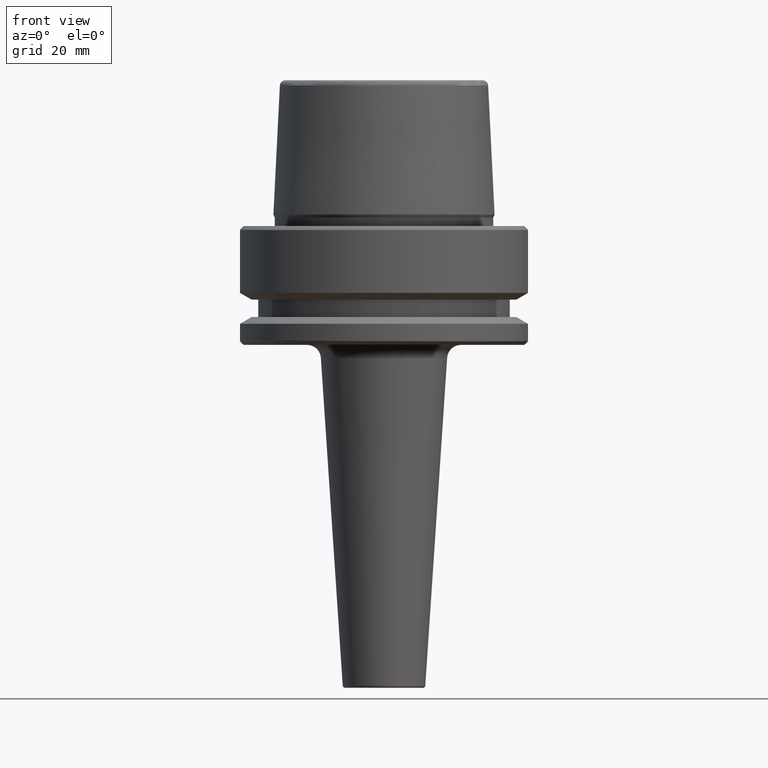
[diagram: clean part render]
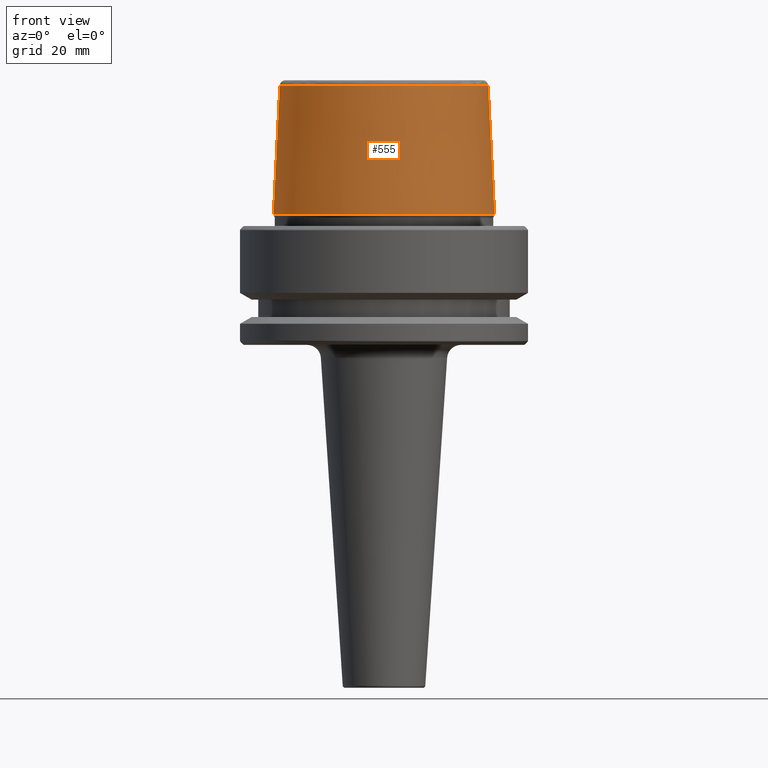
[diagram: same view with one face highlighted and labeled with its STEP entity id]
A machine part, front view. The second image highlights one B-rep face of the part: STEP entity #555.
In plain terms, the highlighted conical surface has half-angle 2.868 deg.
Its self-contained STEP definition (entity closure, byte-faithful):
#65 = ORIENTED_EDGE ( 'NONE', *, *, #1198, .T. ) ;
#71 = DIRECTION ( 'NONE',  ( 1.000000000000000000, 0.0000000000000000000, 0.0000000000000000000 ) ) ;
#129 = CARTESIAN_POINT ( 'NONE',  ( 24.19537568275369200, 0.0000000000000000000, 2.500000000000002200 ) ) ;
#133 = VECTOR ( 'NONE', #195, 1000.000000000000200 ) ;
#150 = VERTEX_POINT ( 'NONE', #927 ) ;
#170 = VERTEX_POINT ( 'NONE', #129 ) ;
#195 = DIRECTION ( 'NONE',  ( 0.05003611051310804400, 6.127656258166099700E-018, -0.9987474093306675200 ) ) ;
#209 = CIRCLE ( 'NONE', #944, 24.19537568275369200 ) ;
#222 = FACE_OUTER_BOUND ( 'NONE', #1004, .T. ) ;
#251 = EDGE_CURVE ( 'NONE', #150, #170, #911, .T. ) ;
#260 = CARTESIAN_POINT ( 'NONE',  ( -24.19537568275369200, 2.963078938405201500E-015, 2.500000000000002200 ) ) ;
#269 = CARTESIAN_POINT ( 'NONE',  ( -22.77957961851797100, 0.0000000000000000000, 30.76004333261571900 ) ) ;
#288 = EDGE_CURVE ( 'NONE', #635, #150, #1011, .T. ) ;
#292 = DIRECTION ( 'NONE',  ( 0.0000000000000000000, 0.0000000000000000000, -1.000000000000000000 ) ) ;
#296 = CARTESIAN_POINT ( 'NONE',  ( 24.19537568275369200, 2.963078938405201500E-015, 2.500000000000002200 ) ) ;
#315 = CARTESIAN_POINT ( 'NONE',  ( 0.0000000000000000000, 0.0000000000000000000, 2.500000000000002200 ) ) ;
#364 = VECTOR ( 'NONE', #1152, 1000.000000000000200 ) ;
#411 = DIRECTION ( 'NONE',  ( 1.000000000000000000, 0.0000000000000000000, 0.0000000000000000000 ) ) ;
#445 = ORIENTED_EDGE ( 'NONE', *, *, #251, .F. ) ;
#489 = DIRECTION ( 'NONE',  ( -1.000000000000000000, 0.0000000000000000000, 0.0000000000000000000 ) ) ;
#555 = ADVANCED_FACE ( 'NONE', ( #222 ), #1202, .T. ) ;
#570 = CARTESIAN_POINT ( 'NONE',  ( -24.19537568275369200, 0.0000000000000000000, 2.500000000000002200 ) ) ;
#612 = AXIS2_PLACEMENT_3D ( 'NONE', #875, #292, #489 ) ;
#618 = LINE ( 'NONE', #570, #364 ) ;
#619 = VERTEX_POINT ( 'NONE', #260 ) ;
#635 = VERTEX_POINT ( 'NONE', #269 ) ;
#638 = DIRECTION ( 'NONE',  ( -0.0000000000000000000, -0.0000000000000000000, 1.000000000000000000 ) ) ;
#770 = AXIS2_PLACEMENT_3D ( 'NONE', #1241, #638, #71 ) ;
#875 = CARTESIAN_POINT ( 'NONE',  ( 0.0000000000000000000, 0.0000000000000000000, 2.500000000000002200 ) ) ;
#911 = LINE ( 'NONE', #296, #133 ) ;
#927 = CARTESIAN_POINT ( 'NONE',  ( 22.77957961851797100, 2.876386432489616700E-015, 30.76004333261571900 ) ) ;
#944 = AXIS2_PLACEMENT_3D ( 'NONE', #315, #1009, #411 ) ;
#982 = EDGE_CURVE ( 'NONE', #635, #619, #618, .T. ) ;
#1004 = EDGE_LOOP ( 'NONE', ( #445, #1243, #1092, #65 ) ) ;
#1009 = DIRECTION ( 'NONE',  ( -0.0000000000000000000, -0.0000000000000000000, 1.000000000000000000 ) ) ;
#1011 = CIRCLE ( 'NONE', #770, 22.77957961851797100 ) ;
#1092 = ORIENTED_EDGE ( 'NONE', *, *, #982, .T. ) ;
#1152 = DIRECTION ( 'NONE',  ( -0.05003611051310804400, 0.0000000000000000000, -0.9987474093306675200 ) ) ;
#1198 = EDGE_CURVE ( 'NONE', #619, #170, #209, .T. ) ;
#1202 = CONICAL_SURFACE ( 'NONE', #612, 24.19537568275369200, 0.05005701257455997400 ) ;
#1241 = CARTESIAN_POINT ( 'NONE',  ( 0.0000000000000000000, 0.0000000000000000000, 30.76004333261571900 ) ) ;
#1243 = ORIENTED_EDGE ( 'NONE', *, *, #288, .F. ) ;